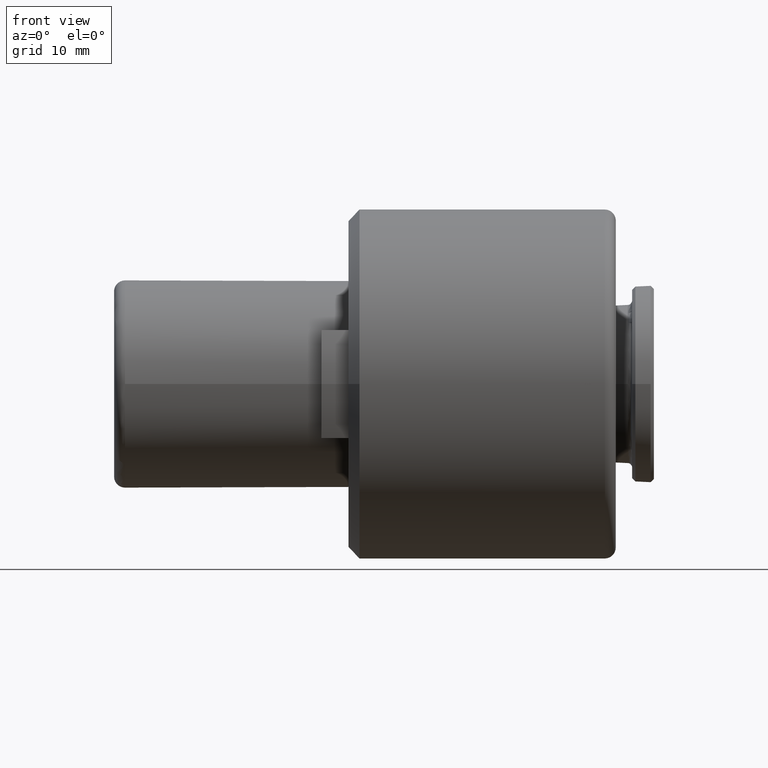
[diagram: clean part render]
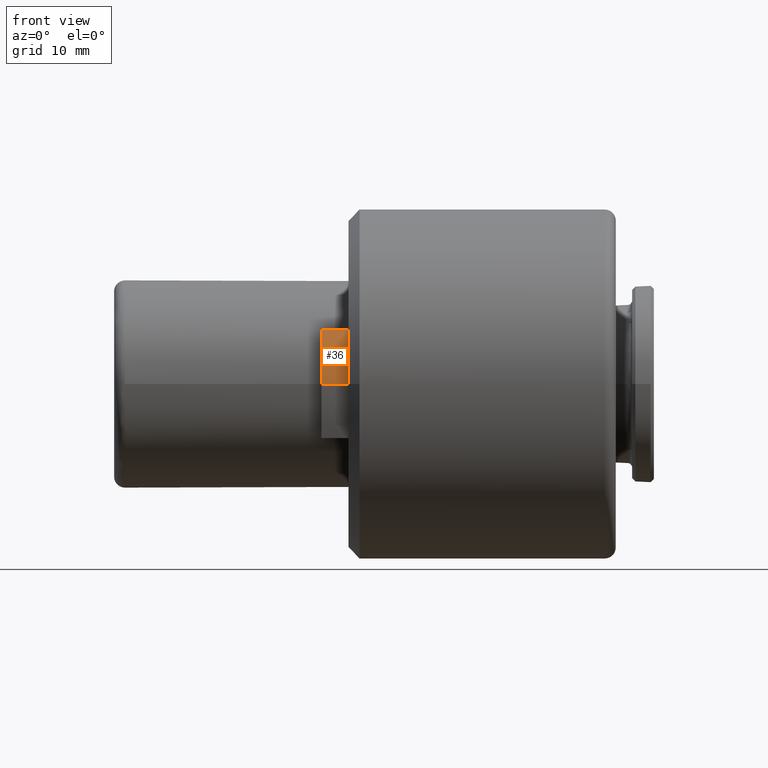
[diagram: same view with one face highlighted and labeled with its STEP entity id]
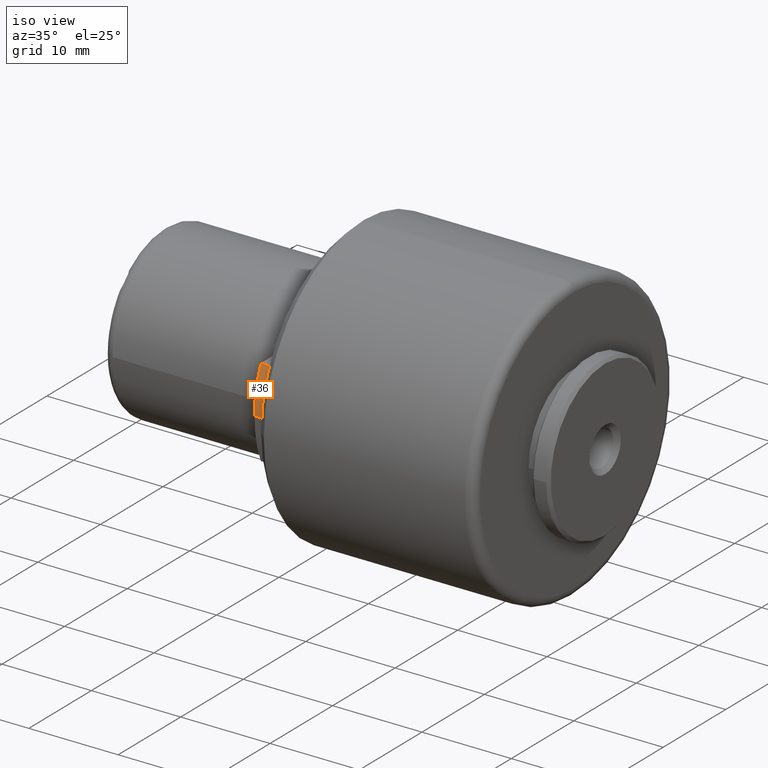
[diagram: same view with one face highlighted and labeled with its STEP entity id]
A machine part, front view. The second image highlights one B-rep face of the part: STEP entity #36.
A second angle (iso view) of the same face is appended — the face is thin or edge-on in the first view.
In plain terms, the highlighted cylindrical surface (partial cylindrical patch) has radius 12.5 mm, axis along (-1, -0, -0).
Its self-contained STEP definition (entity closure, byte-faithful):
#28 = EDGE_CURVE ( 'NONE', #707, #1138, #257, .T. ) ;
#36 = ADVANCED_FACE ( 'NONE', ( #420 ), #766, .T. ) ;
#108 = VERTEX_POINT ( 'NONE', #964 ) ;
#110 = ORIENTED_EDGE ( 'NONE', *, *, #28, .F. ) ;
#113 = CIRCLE ( 'NONE', #700, 12.50000000000000000 ) ;
#140 = ORIENTED_EDGE ( 'NONE', *, *, #585, .T. ) ;
#163 = ORIENTED_EDGE ( 'NONE', *, *, #595, .F. ) ;
#185 = CARTESIAN_POINT ( 'NONE',  ( 21.50000000000000000, -2.210607693693726000E-031, 0.0000000000000000000 ) ) ;
#193 = DIRECTION ( 'NONE',  ( 1.000000000000000000, 0.0000000000000000000, 0.0000000000000000000 ) ) ;
#224 = VECTOR ( 'NONE', #439, 1000.000000000000000 ) ;
#226 = DIRECTION ( 'NONE',  ( 1.000000000000000000, 1.387778780781445700E-016, 0.0000000000000000000 ) ) ;
#254 = DIRECTION ( 'NONE',  ( -1.000000000000000000, -1.387778780781445700E-016, -0.0000000000000000000 ) ) ;
#257 = LINE ( 'NONE', #525, #357 ) ;
#271 = LINE ( 'NONE', #994, #224 ) ;
#304 = EDGE_LOOP ( 'NONE', ( #163, #710, #110, #140 ) ) ;
#339 = VERTEX_POINT ( 'NONE', #995 ) ;
#357 = VECTOR ( 'NONE', #193, 1000.000000000000000 ) ;
#378 = EDGE_CURVE ( 'NONE', #108, #1138, #1054, .T. ) ;
#420 = FACE_OUTER_BOUND ( 'NONE', #304, .T. ) ;
#439 = DIRECTION ( 'NONE',  ( -1.000000000000000000, -1.387778780781445700E-016, -0.0000000000000000000 ) ) ;
#473 = CARTESIAN_POINT ( 'NONE',  ( 21.50000000000000000, -11.47813138271872700, 4.949999996039999000 ) ) ;
#496 = AXIS2_PLACEMENT_3D ( 'NONE', #592, #508, #1047 ) ;
#508 = DIRECTION ( 'NONE',  ( -1.000000000000000000, -1.387778780781445700E-016, -0.0000000000000000000 ) ) ;
#525 = CARTESIAN_POINT ( 'NONE',  ( 20.25000000000000000, -11.47813138099999900, 4.950000000000000200 ) ) ;
#544 = DIRECTION ( 'NONE',  ( 0.0000000000000000000, -1.000000000000000000, -2.664535259100376100E-015 ) ) ;
#585 = EDGE_CURVE ( 'NONE', #707, #339, #113, .T. ) ;
#592 = CARTESIAN_POINT ( 'NONE',  ( 21.50000000000000000, 0.0000000000000000000, 0.0000000000000000000 ) ) ;
#595 = EDGE_CURVE ( 'NONE', #108, #339, #271, .T. ) ;
#700 = AXIS2_PLACEMENT_3D ( 'NONE', #1170, #226, #544 ) ;
#707 = VERTEX_POINT ( 'NONE', #980 ) ;
#710 = ORIENTED_EDGE ( 'NONE', *, *, #378, .T. ) ;
#766 = CYLINDRICAL_SURFACE ( 'NONE', #496, 12.50000000000000000 ) ;
#840 = DIRECTION ( 'NONE',  ( 2.775557561562891400E-016, -1.000000000000000000, 0.0000000000000000000 ) ) ;
#964 = CARTESIAN_POINT ( 'NONE',  ( 21.50000000000000400, -12.50000000000000000, 0.0000000000000000000 ) ) ;
#980 = CARTESIAN_POINT ( 'NONE',  ( 18.99999999999999600, -11.47813138101095600, 4.950000000000000200 ) ) ;
#994 = CARTESIAN_POINT ( 'NONE',  ( 21.50000000000000400, -12.50000000000000000, 0.0000000000000000000 ) ) ;
#995 = CARTESIAN_POINT ( 'NONE',  ( 18.99999999999999600, -12.50000000000000000, 0.0000000000000000000 ) ) ;
#1047 = DIRECTION ( 'NONE',  ( 2.775557561562891400E-016, -1.000000000000000000, 0.0000000000000000000 ) ) ;
#1054 = CIRCLE ( 'NONE', #1139, 12.50000000000000000 ) ;
#1138 = VERTEX_POINT ( 'NONE', #473 ) ;
#1139 = AXIS2_PLACEMENT_3D ( 'NONE', #185, #254, #840 ) ;
#1170 = CARTESIAN_POINT ( 'NONE',  ( 18.99999999999999600, -3.469446951953619600E-016, 0.0000000000000000000 ) ) ;